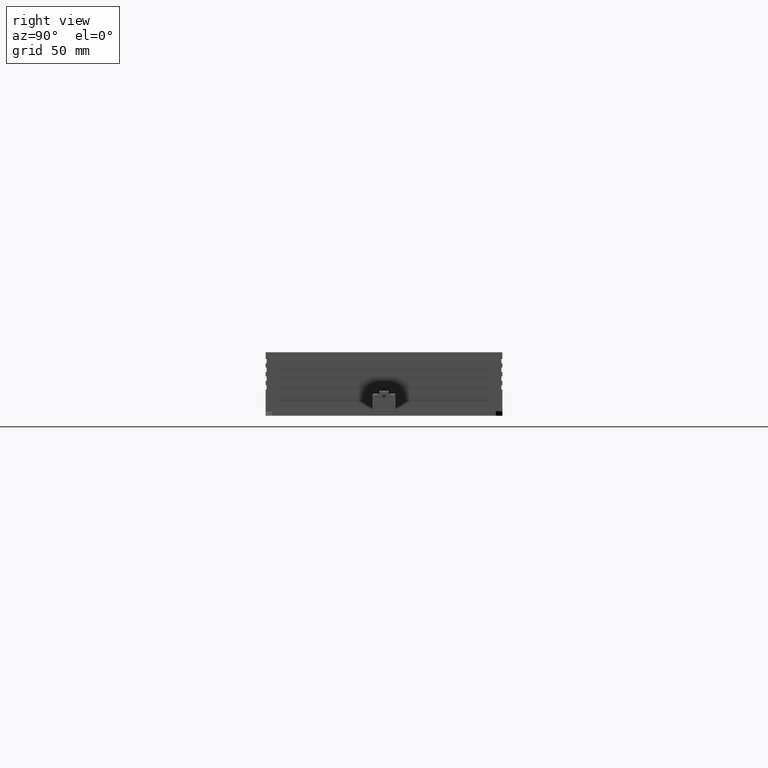
[diagram: clean part render]
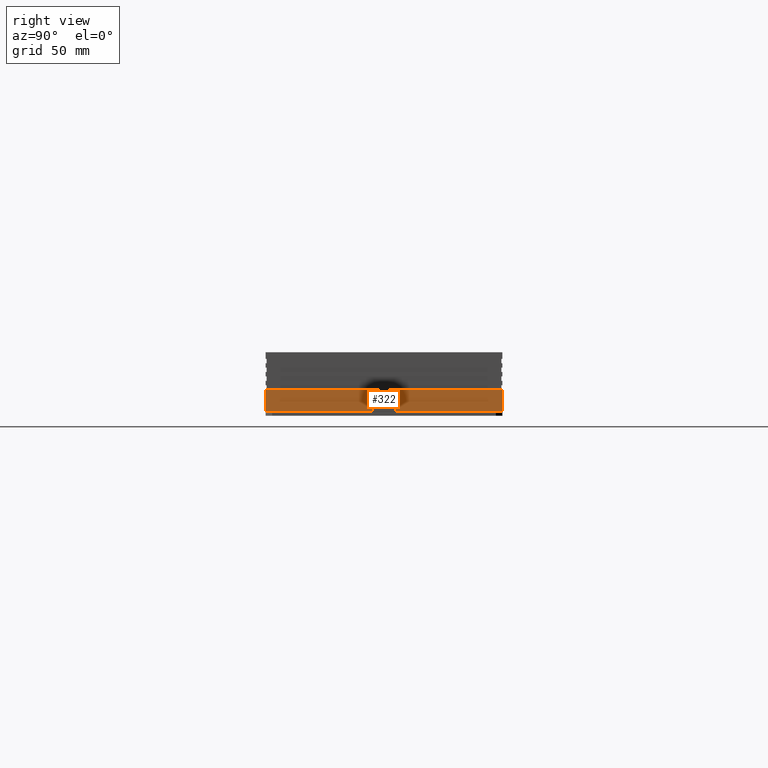
[diagram: same view with one face highlighted and labeled with its STEP entity id]
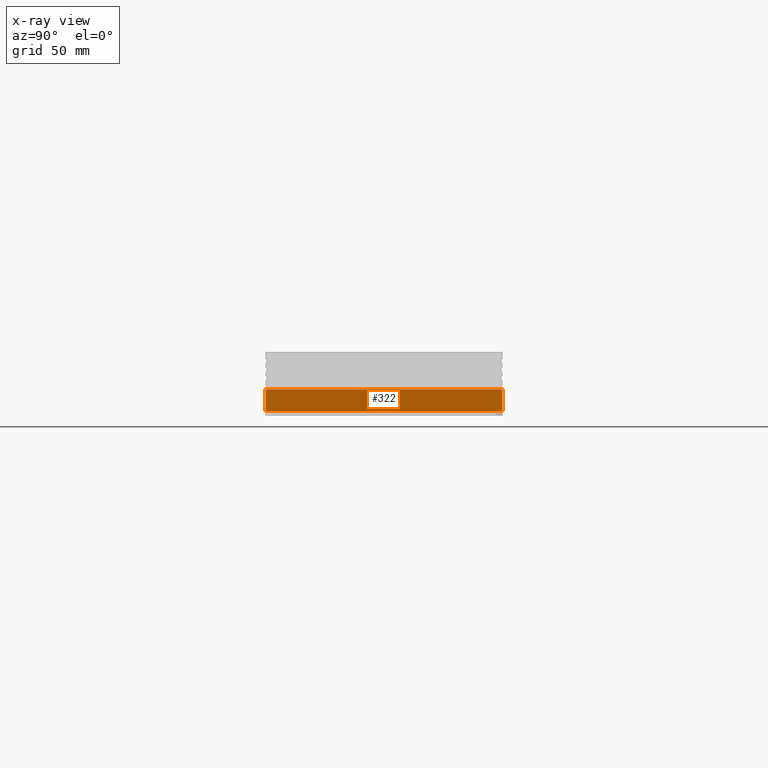
[diagram: x-ray of the same camera — body ghosted, the highlighted face saturated]
A machine part, right view. The second image highlights one B-rep face of the part: STEP entity #322.
The next image is the same camera in x-ray: the body ghosted, the highlighted face saturated — about 7% of this face is hidden behind the body in this view.
In plain terms, the highlighted planar face has unit normal (-1, 0, 0).
Its self-contained STEP definition (entity closure, byte-faithful):
#322=ADVANCED_FACE('0:300403',(#815,#816),#817,.F.);
#815=FACE_BOUND('',#1506,.T.);
#816=FACE_OUTER_BOUND('',#1507,.T.);
#817=PLANE('',#1508);
#1506=EDGE_LOOP('',(#2645));
#1507=EDGE_LOOP('',(#2646,#2647,#2648,#2649));
#1508=AXIS2_PLACEMENT_3D('',#2650,#2651,#2652);
#2645=ORIENTED_EDGE('',*,*,#4438,.F.);
#2646=ORIENTED_EDGE('',*,*,#4501,.T.);
#2647=ORIENTED_EDGE('',*,*,#4473,.F.);
#2648=ORIENTED_EDGE('',*,*,#4502,.F.);
#2649=ORIENTED_EDGE('',*,*,#4503,.T.);
#2650=CARTESIAN_POINT('',(0.105,0.0539999999999996,0.0019999999999998));
#2651=DIRECTION('',(-1.0,3.21964677141295E-15,0.0));
#2652=DIRECTION('',(1.19562483263944E-29,3.71352796603441E-15,1.0));
#4438=EDGE_CURVE('0:300865',#5200,#5200,#5201,.F.);
#4473=EDGE_CURVE('0:300562',#5261,#5263,#5264,.T.);
#4501=EDGE_CURVE('0:300640',#5306,#5263,#5307,.T.);
#4502=EDGE_CURVE('0:300862',#5308,#5261,#5309,.T.);
#4503=EDGE_CURVE('0:300832',#5308,#5306,#5310,.T.);
#5200=VERTEX_POINT('',#6311);
#5201=CIRCLE('',#6312,0.00195);
#5261=VERTEX_POINT('',#6391);
#5263=VERTEX_POINT('',#6394);
#5264=LINE('',#6395,#6396);
#5306=VERTEX_POINT('',#6459);
#5307=LINE('',#6460,#6461);
#5308=VERTEX_POINT('',#6462);
#5309=LINE('',#6463,#6464);
#5310=LINE('',#6465,#6466);
#6311=CARTESIAN_POINT('',(0.105,-0.00195000000000037,0.006));
#6312=AXIS2_PLACEMENT_3D('',#7931,#7932,#7933);
#6391=CARTESIAN_POINT('',(0.105,0.0539999999999996,0.0019999999999998));
#6394=CARTESIAN_POINT('',(0.105,-0.0540000000000004,0.0020000000000002));
#6395=CARTESIAN_POINT('',(0.105,0.0539999999999996,0.0019999999999998));
#6396=VECTOR('',#7975,1.0);
#6459=CARTESIAN_POINT('',(0.105,-0.0540000000000004,0.0119000000000002));
#6460=CARTESIAN_POINT('',(0.105,-0.0540000000000004,0.0119000000000002));
#6461=VECTOR('',#7997,1.0);
#6462=CARTESIAN_POINT('',(0.105,0.0539999999999997,0.0118999999999998));
#6463=CARTESIAN_POINT('',(0.105,0.0539999999999997,0.0118999999999998));
#6464=VECTOR('',#7998,1.0);
#6465=CARTESIAN_POINT('',(0.105,0.0539999999999997,0.0118999999999998));
#6466=VECTOR('',#7999,1.0);
#7931=CARTESIAN_POINT('',(0.105,-3.6949610038306E-16,0.006));
#7932=DIRECTION('',(-1.0,3.21964677141295E-15,0.0));
#7933=DIRECTION('',(-3.21964677141295E-15,-1.0,0.0));
#7975=DIRECTION('',(-3.21964677141295E-15,-1.0,3.71352796603441E-15));
#7997=DIRECTION('',(-1.20301288046204E-29,-3.71352796603441E-15,-1.0));
#7998=DIRECTION('',(-1.20301288046204E-29,-3.71352796603441E-15,-1.0));
#7999=DIRECTION('',(-3.21964677141295E-15,-1.0,3.71352796603441E-15));